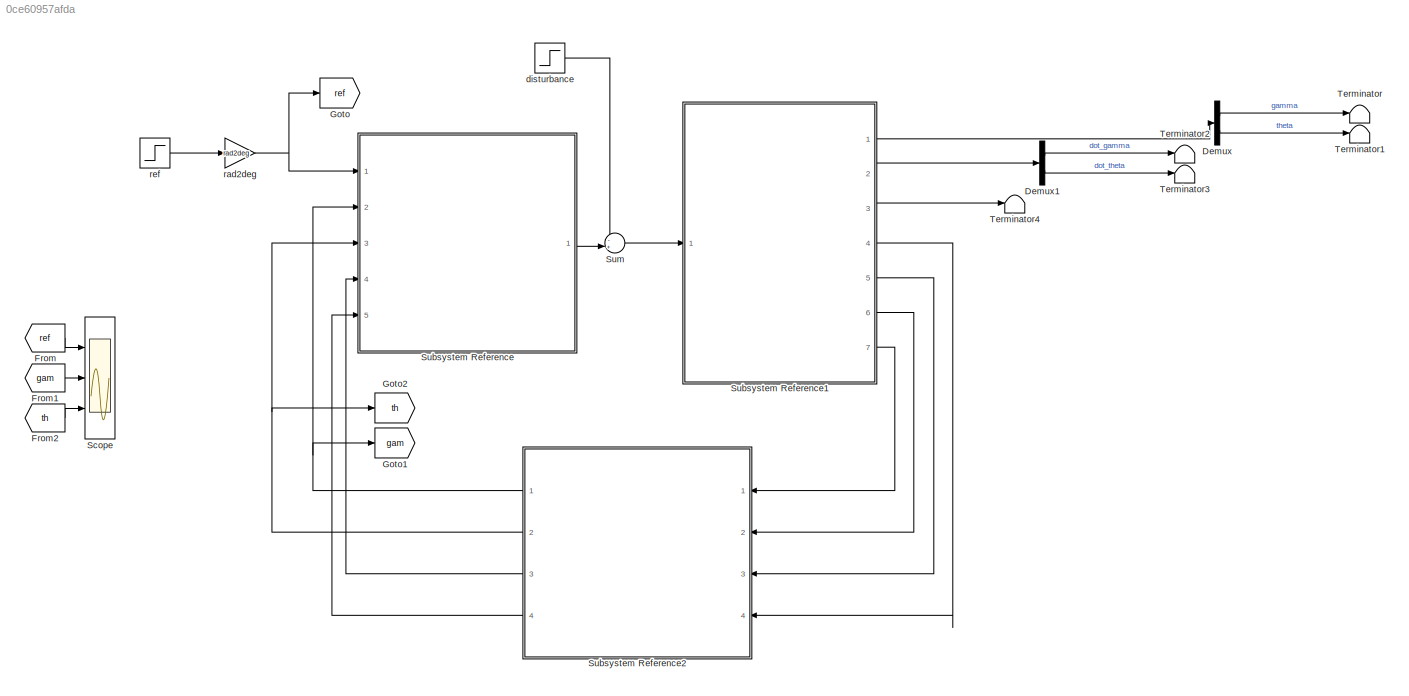
MODEL slx_0ce60957afda
KIND model
CONFIG AbsTol = auto
CONFIG EnableMultiTasking = off
CONFIG FixedStep = auto
CONFIG MaxStep = 0.001
CONFIG MinStep = auto
CONFIG RelTol = 1e-3
CONFIG SampleTimeConstraint = Unconstrained
CONFIG SolverName = ode45
CONFIG StartTime = 0.0
CONFIG StopTime = 20
BLOCK [Demux] Demux
  Outputs = 2
  Ports = [1, 2]
BLOCK [Demux] Demux1
  Outputs = 2
  Ports = [1, 2]
BLOCK [From] From
  GotoTag = ref
BLOCK [From] From1
  GotoTag = gam
BLOCK [From] From2
  GotoTag = th
BLOCK [Goto] Goto
  GotoTag = ref
BLOCK [Goto] Goto1
  GotoTag = gam
BLOCK [Goto] Goto2
  GotoTag = th
BLOCK [Scope] Scope
  Floating = off
  NumInputPorts = 3
  Ports = [3]
  ScopeSpecificationString = Simulink.scopes.TimeScopeBlockCfg('CurrentConfiguration', extmgr.ConfigurationSet(extmgr.Configuration('Core','General UI',true),extmgr.Configuration('Core','Source UI',true),extmgr.Configuration('Sources','WiredSimulink',true),extmgr.Configuration('Visuals','Time Domain',true,'SerializedDisplays',{struct('MinYLimReal','-2145.62103','MaxYLimReal','1527.12975','YLabelReal','','MinYLimMag','  0.0000...<+1689ch>
BLOCK [SubSystem] Subsystem Reference
  Ports = [5, 1]
  ReferencedSubsystem = StateSpaceControllerRobust_SubSystem
  RequestExecContextInheritance = off
BLOCK [SubSystem] Subsystem Reference1
  Ports = [1, 7]
  ReferencedSubsystem = balrobot_SubSystem
  RequestExecContextInheritance = off
BLOCK [SubSystem] Subsystem Reference2
  NameLocation = top
  Ports = [4, 4]
  ReferencedSubsystem = SimpleStateObserver_SubSystem
  RequestExecContextInheritance = off
BLOCK [Sum] Sum
  Inputs = -+|
  Ports = [2, 1]
BLOCK [Terminator] Terminator
BLOCK [Terminator] Terminator1
BLOCK [Terminator] Terminator2
BLOCK [Terminator] Terminator3
BLOCK [Terminator] Terminator4
BLOCK [Step] disturbance
  After = disturbance
  SampleTime = Ts
  Time = 10
BLOCK [Gain] rad2deg
  Gain = rad2deg
BLOCK [Step] ref
  After = ref
  SampleTime = Ts
  Time = 0
LINE Demux1:1 -> Terminator2:1
LINE Demux1:2 -> Terminator3:1
LINE Demux:1 -> Terminator:1
LINE Demux:2 -> Terminator1:1
LINE From1:1 -> Scope:2
LINE From2:1 -> Scope:3
LINE From:1 -> Scope:1
LINE Subsystem Reference1:1 -> Demux:1
LINE Subsystem Reference1:2 -> Demux1:1
LINE Subsystem Reference1:3 -> Terminator4:1
LINE Subsystem Reference1:4 -> Subsystem Reference2:4
LINE Subsystem Reference1:5 -> Subsystem Reference2:3
LINE Subsystem Reference1:6 -> Subsystem Reference2:2
LINE Subsystem Reference1:7 -> Subsystem Reference2:1
NET Subsystem Reference2:1 -> Goto1:1, Subsystem Reference:2
NET Subsystem Reference2:2 -> Goto2:1, Subsystem Reference:3
LINE Subsystem Reference2:3 -> Subsystem Reference:4
LINE Subsystem Reference2:4 -> Subsystem Reference:5
LINE Subsystem Reference:1 -> Sum:2
LINE Sum:1 -> Subsystem Reference1:1
LINE disturbance:1 -> Sum:1
NET rad2deg:1 -> Goto:1, Subsystem Reference:1
LINE ref:1 -> rad2deg:1
note: NET lines group one-source signal fan-out (src -> all destinations, sorted); 1:1 wires keep LINE
